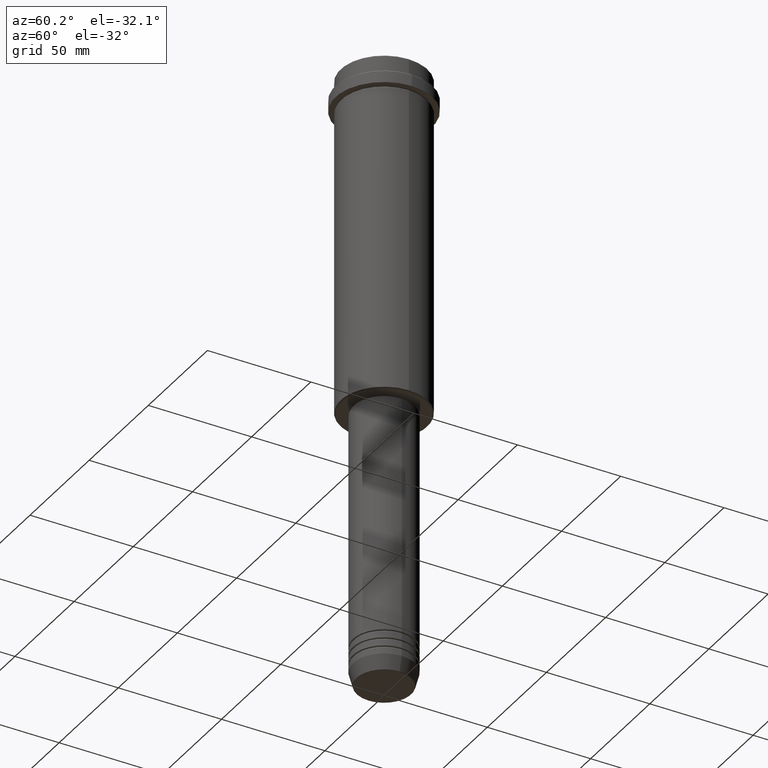
[diagram: clean part render]
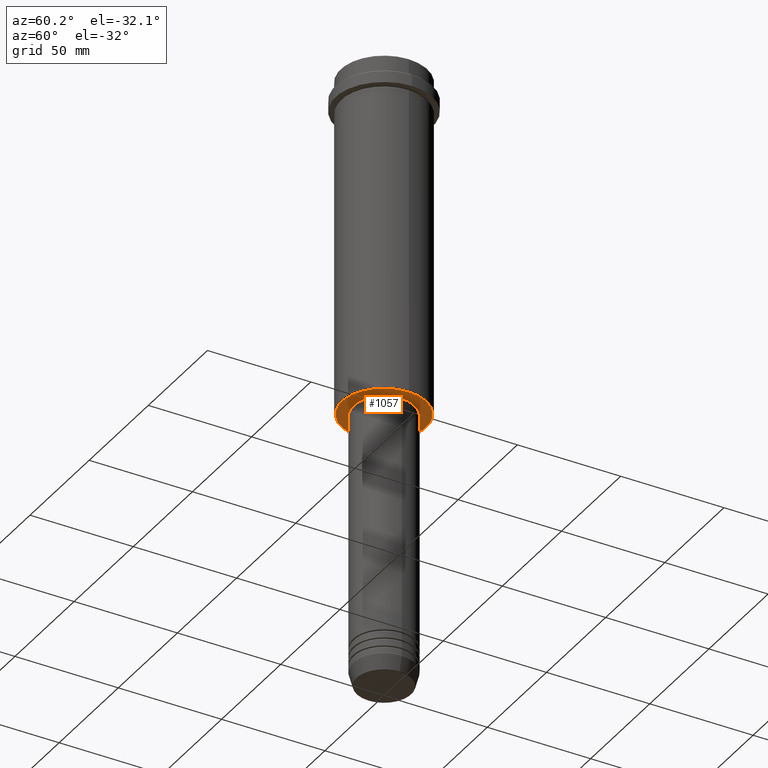
[diagram: same view with one face highlighted and labeled with its STEP entity id]
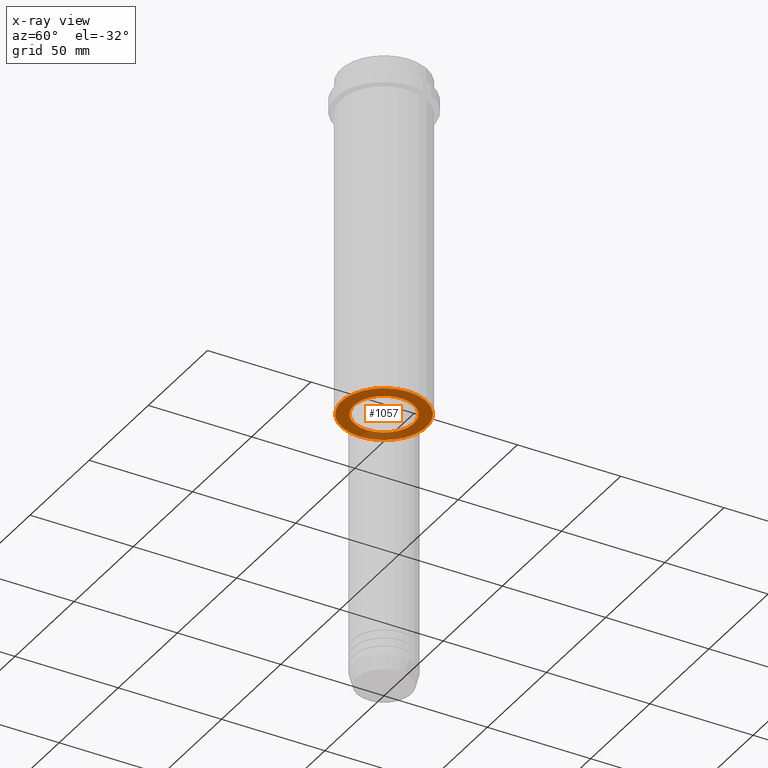
[diagram: x-ray of the same camera — body ghosted, the highlighted face saturated]
A machine part, auxiliary view. The second image highlights one B-rep face of the part: STEP entity #1057.
The next image is the same camera in x-ray: the body ghosted, the highlighted face saturated — about 15% of this face is hidden behind the body in this view.
In plain terms, the highlighted planar face has unit normal (0, 0, -1).
Its self-contained STEP definition (entity closure, byte-faithful):
#3 = EDGE_CURVE ( 'NONE', #201, #1093, #344, .T. ) ;
#131 = CARTESIAN_POINT ( 'NONE',  ( 0.000000000000000000, 0.000000000000000000, -164.9999999999999716 ) ) ;
#173 = ORIENTED_EDGE ( 'NONE', *, *, #3, .T. ) ;
#179 = DIRECTION ( 'NONE',  ( -1.000000000000000000, 0.000000000000000000, -0.000000000000000000 ) ) ;
#201 = VERTEX_POINT ( 'NONE', #981 ) ;
#223 = CARTESIAN_POINT ( 'NONE',  ( 0.000000000000000000, 0.000000000000000000, -165.0000000000000000 ) ) ;
#237 = DIRECTION ( 'NONE',  ( 1.000000000000000000, 0.000000000000000000, 0.000000000000000000 ) ) ;
#248 = DIRECTION ( 'NONE',  ( -0.000000000000000000, -0.000000000000000000, 1.000000000000000000 ) ) ;
#264 = PLANE ( 'NONE',  #419 ) ;
#275 = EDGE_CURVE ( 'NONE', #1123, #627, #304, .T. ) ;
#304 = CIRCLE ( 'NONE', #1108, 14.49999999999999822 ) ;
#317 = ORIENTED_EDGE ( 'NONE', *, *, #878, .T. ) ;
#344 = CIRCLE ( 'NONE', #1198, 20.49999999999998934 ) ;
#372 = ORIENTED_EDGE ( 'NONE', *, *, #1303, .T. ) ;
#419 = AXIS2_PLACEMENT_3D ( 'NONE', #1141, #711, #179 ) ;
#482 = DIRECTION ( 'NONE',  ( 0.000000000000000000, 0.000000000000000000, -1.000000000000000000 ) ) ;
#514 = CIRCLE ( 'NONE', #1174, 14.49999999999999822 ) ;
#577 = DIRECTION ( 'NONE',  ( 0.000000000000000000, 0.000000000000000000, -1.000000000000000000 ) ) ;
#627 = VERTEX_POINT ( 'NONE', #654 ) ;
#654 = CARTESIAN_POINT ( 'NONE',  ( -14.49999999999999822, 1.775737858763662015E-15, -164.9999999999999716 ) ) ;
#681 = DIRECTION ( 'NONE',  ( 1.000000000000000000, 0.000000000000000000, 0.000000000000000000 ) ) ;
#711 = DIRECTION ( 'NONE',  ( 0.000000000000000000, 0.000000000000000000, -1.000000000000000000 ) ) ;
#718 = FACE_BOUND ( 'NONE', #1087, .T. ) ;
#801 = CIRCLE ( 'NONE', #1232, 20.49999999999998934 ) ;
#878 = EDGE_CURVE ( 'NONE', #627, #1123, #514, .T. ) ;
#918 = EDGE_LOOP ( 'NONE', ( #372, #173 ) ) ;
#981 = CARTESIAN_POINT ( 'NONE',  ( -20.49999999999998934, 2.541142108230757085E-15, -165.0000000000000000 ) ) ;
#1027 = CARTESIAN_POINT ( 'NONE',  ( 0.000000000000000000, 0.000000000000000000, -165.0000000000000000 ) ) ;
#1057 = ADVANCED_FACE ( 'NONE', ( #1254, #718 ), #264, .T. ) ;
#1082 = CARTESIAN_POINT ( 'NONE',  ( 20.49999999999998934, 0.000000000000000000, -165.0000000000000000 ) ) ;
#1087 = EDGE_LOOP ( 'NONE', ( #1190, #317 ) ) ;
#1093 = VERTEX_POINT ( 'NONE', #1082 ) ;
#1108 = AXIS2_PLACEMENT_3D ( 'NONE', #131, #248, #681 ) ;
#1109 = DIRECTION ( 'NONE',  ( -1.000000000000000000, 0.000000000000000000, 0.000000000000000000 ) ) ;
#1123 = VERTEX_POINT ( 'NONE', #1310 ) ;
#1141 = CARTESIAN_POINT ( 'NONE',  ( 0.000000000000000000, 21.00000000000000000, -165.0000000000000000 ) ) ;
#1174 = AXIS2_PLACEMENT_3D ( 'NONE', #1223, #1215, #237 ) ;
#1190 = ORIENTED_EDGE ( 'NONE', *, *, #275, .T. ) ;
#1198 = AXIS2_PLACEMENT_3D ( 'NONE', #1027, #482, #1238 ) ;
#1215 = DIRECTION ( 'NONE',  ( -0.000000000000000000, -0.000000000000000000, 1.000000000000000000 ) ) ;
#1223 = CARTESIAN_POINT ( 'NONE',  ( 0.000000000000000000, 0.000000000000000000, -164.9999999999999716 ) ) ;
#1232 = AXIS2_PLACEMENT_3D ( 'NONE', #223, #577, #1109 ) ;
#1238 = DIRECTION ( 'NONE',  ( -1.000000000000000000, 0.000000000000000000, 0.000000000000000000 ) ) ;
#1254 = FACE_OUTER_BOUND ( 'NONE', #918, .T. ) ;
#1303 = EDGE_CURVE ( 'NONE', #1093, #201, #801, .T. ) ;
#1310 = CARTESIAN_POINT ( 'NONE',  ( 14.49999999999999822, 0.000000000000000000, -164.9999999999999716 ) ) ;